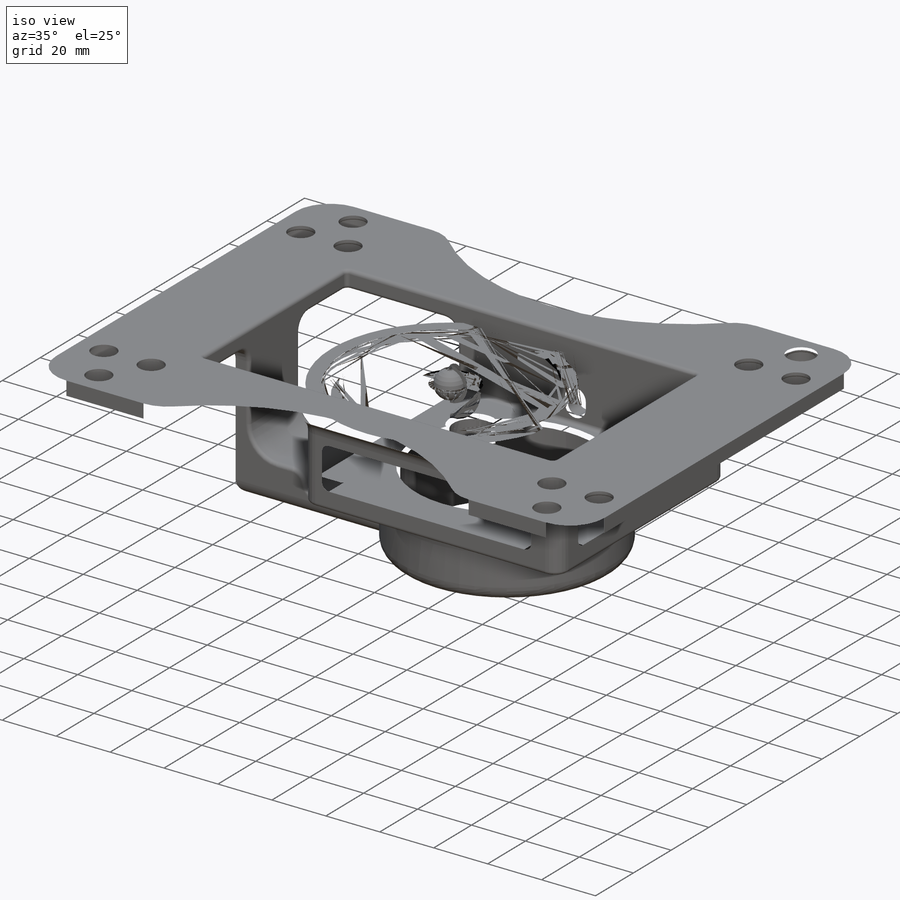
[diagram: iso view]
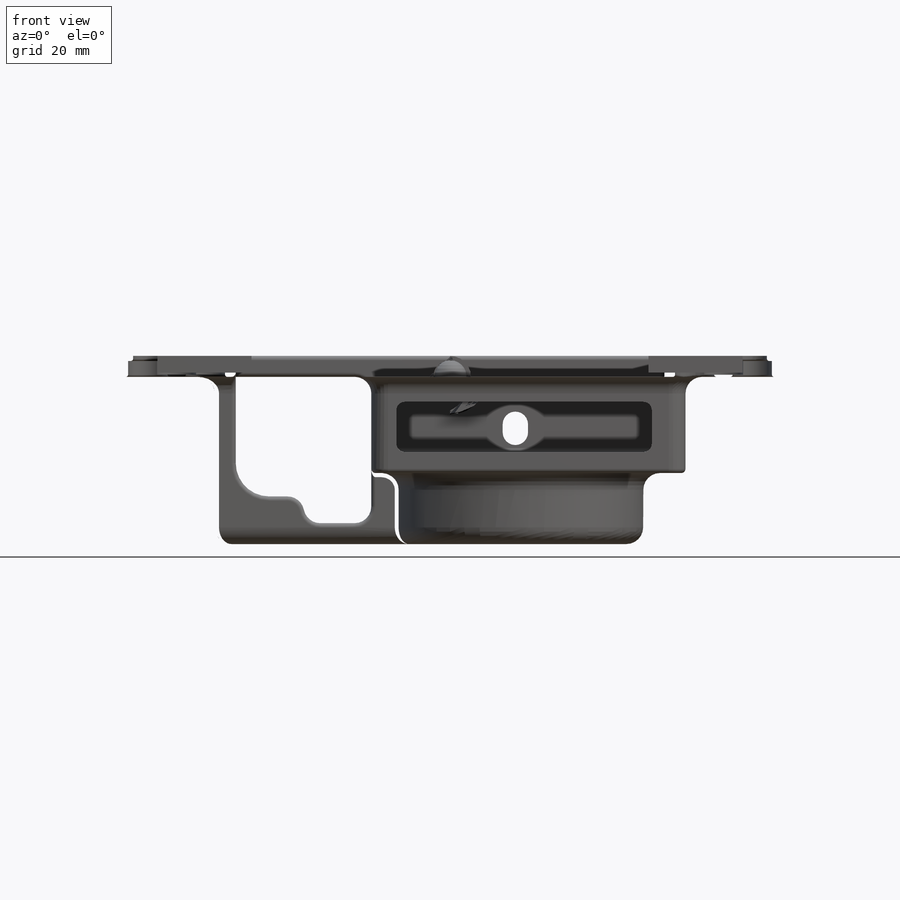
[diagram: front view]
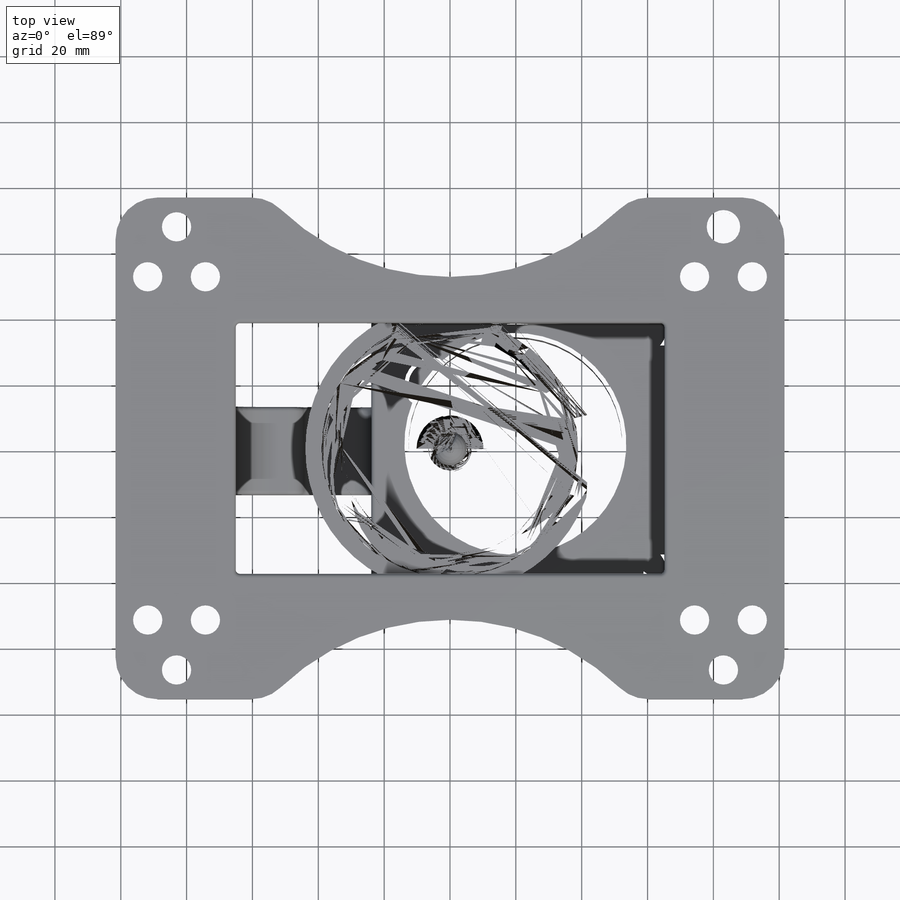
[diagram: top view]
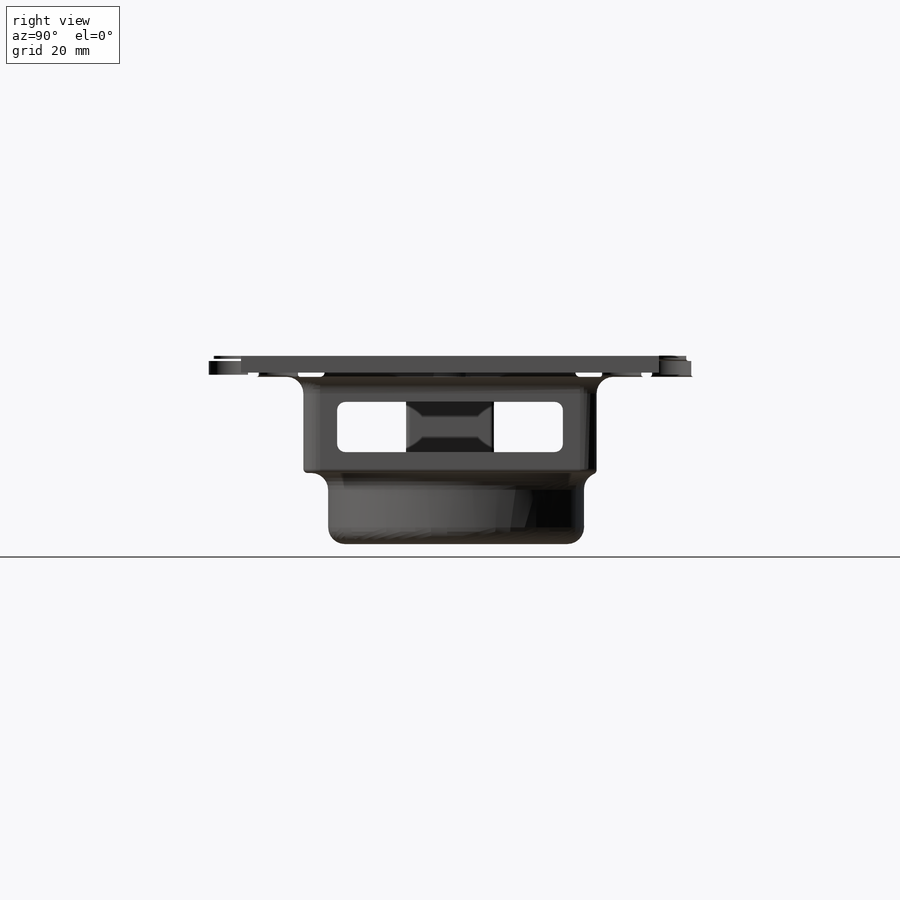
[diagram: right view]
SOLIDWORKS PART (.sldprt)
format: sldprt  version: not decoded by parser v0  size: 1,822,208 bytes
history: native  units: mm
features: fillet x20, sketch x16, cut_extrude x8, extrude x6, mirror x2, material x1, plane x1, hole x1 (+13 scaffold rows collapsed)
feature tree (68):
  scaffold x13  (default folders/planes/origin — collapsed)
  material  "ABS"
  sketch  "Sketch1"  dims[c1.D3=8.89mm c1.D1=152.4mm c1.D2=127.0mm c1.D4=~17.558503mm c2.D4=60.0deg c2.D5=~19.814018mm c3.D5=60.0deg c3.D6=26.416mm c3.D7=6.35mm c3.D8=38.1mm c3.D9=34.29mm c3.D10=~7.026359mm c4.D9=8.89mm c4.D10=203.2mm c4.D11=~33.399351mm]
  extrude  "Boss-Extrude1"  Depth=6.35mm
  sketch  "Sketch2"  dims[D1=130.175mm D2=76.2mm]
  cut_extrude  "Cut-Extrude1"  Depth=6.35mm
  plane  "Plane1"  Offset=12.7mm
  sketch  "Sketch3"  dims[D1=~1.39065mm]
  cut_extrude  "Cut-Extrude2"  Depth=0.0254mm
  sketch  "Sketch6"  dims[D1=82.55mm D2=6.4389mm D3=0.0mm D4=1.6764mm D5=1.6764mm]
  extrude  "Boss-Extrude5"  Depth=22.86mm
  extrude  "Boss-Extrude8"  [1 undecoded]
  sketch  "Sketch6<3>"  dims[D1=6.35mm]
  sketch  "Sketch8"  dims[D1=6.4389mm]
  extrude  "Boss-Extrude9"  Depth=21.59mm
  sketch  "Sketch9"  dims[c1.D2=44.45mm c1.D3=38.1mm c1.D4=2.5014mm c1.D1=50.8mm c2.D4=53.975mm c2.D5=15.24mm c2.D6=6.35mm c2.D7=6.35mm c2.D8=9.525mm c2.D3=8.89mm c3.D4=8.128mm c3.D1=6.35mm]
  extrude  "Boss-Extrude10"  Depth=26.67mm
  fillet  "Fillet1"  Radius=5.08mm
  fillet  "Fillet2"  Radius=5.08mm
  fillet  "Fillet4"  Radius=2.54mm
  fillet  "Fillet5"  Radius=10.16mm
  fillet  "Fillet6"  Radius=5.08mm
  fillet  "Fillet7"  Radius=5.08mm
  fillet  "Fillet8"  Radius=5.08mm
  fillet  "Fillet9"  Radius=5.08mm
  fillet  "Fillet10"  Radius=1.27mm
  fillet  "Fillet11"  Radius=1.27mm
  sketch  "Sketch11"  dims[D2=6.4389mm D3=8.89mm D1=0.0mm]
  cut_extrude  "Cut-Extrude3"  [1 undecoded]
  sketch  "Sketch12"  dims[D1=~1.51765mm]
  cut_extrude  "Cut-Extrude4"  Depth=4.826mm
  fillet  "Fillet12"  Radius=0.635mm
  sketch  "Sketch15"  dims[c1.D1=0.0mm c1.D2=3.175mm c1.D3=2.54mm c1.D4=2.54mm c2.D1=0.0mm c2.D2=2.54mm c2.D3=2.54mm c2.D4=2.54mm]
  cut_extrude  "Cut-Extrude7"  [1 undecoded]
  sketch  "Sketch16"  dims[D1=0.0mm D2=0.0mm D3=2.54mm D4=2.54mm D5=2.54mm]
  cut_extrude  "Cut-Extrude8"  [1 undecoded]
  fillet  "Fillet15"  Radius=2.54mm
  sketch  "Sketch17"
  cut_extrude  "Cut-Extrude9"  [1 undecoded]
  fillet  "Fillet16"  Radius=12.7mm
  fillet  "Fillet17"  Radius=1.27mm
  fillet  "Fillet18"  Radius=1.27mm
  fillet  "Fillet19"  Radius=1.27mm
  fillet  "Fillet20"  Radius=0.635mm
  sketch  "Sketch20"  dims[D1=19.05mm D2=12.7mm D3=38.1mm]
  extrude  "Boss-Extrude11"  Depth=6.35mm
  hole  "1/8 (0.125) Diameter Hole1"  Diameter=3.175mm Depth=19.051mm
  sketch  "Sketch22"
  sketch  "Sketch23"  dims[hole-wizard template sketch: 60 standard entries collapsed; hole parameters kept: c18.Thru Hole Depth=19.051mm]
  sketch  "Sketch24"  dims[D1=6.5278mm]
  cut_extrude  "Cut-Extrude10"  [1 undecoded]
  mirror  "Mirror5"
  mirror  "Mirror6"
  fillet  "Fillet27"  Radius=3.81mm
  fillet  "Fillet28"  Radius=1.27mm
  fillet  "Fillet29"  Radius=1.27mm
decode coverage: 43 of 53 modeling features carry decoded parameters
note: ~ marks probable driven/reference dimensions
note: 6 parameter values undecoded
summary: no parameter record found for 6 features
note: suppression state not decoded; provenance and decode notes live in map.json
